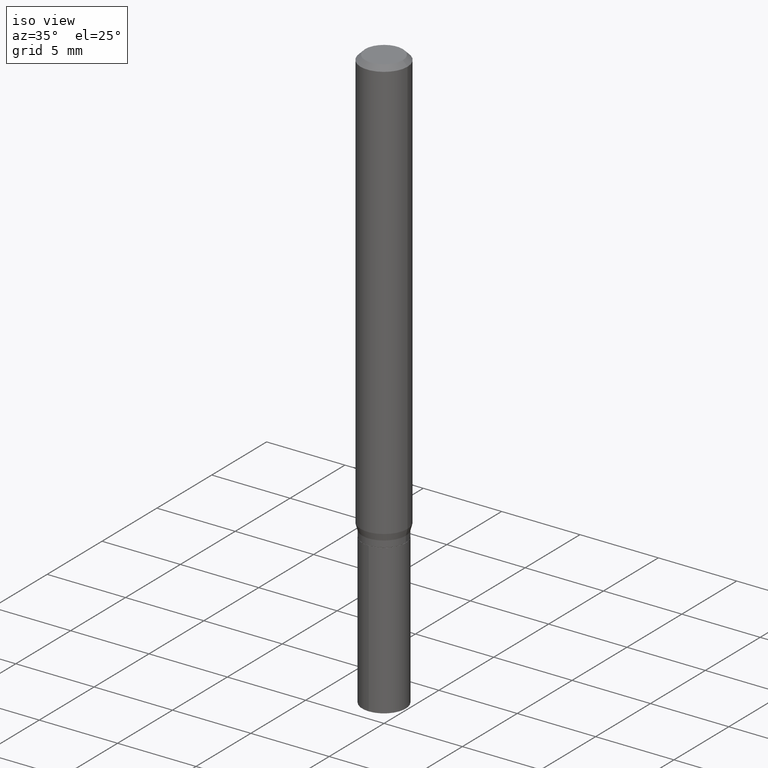
[diagram: clean part render]
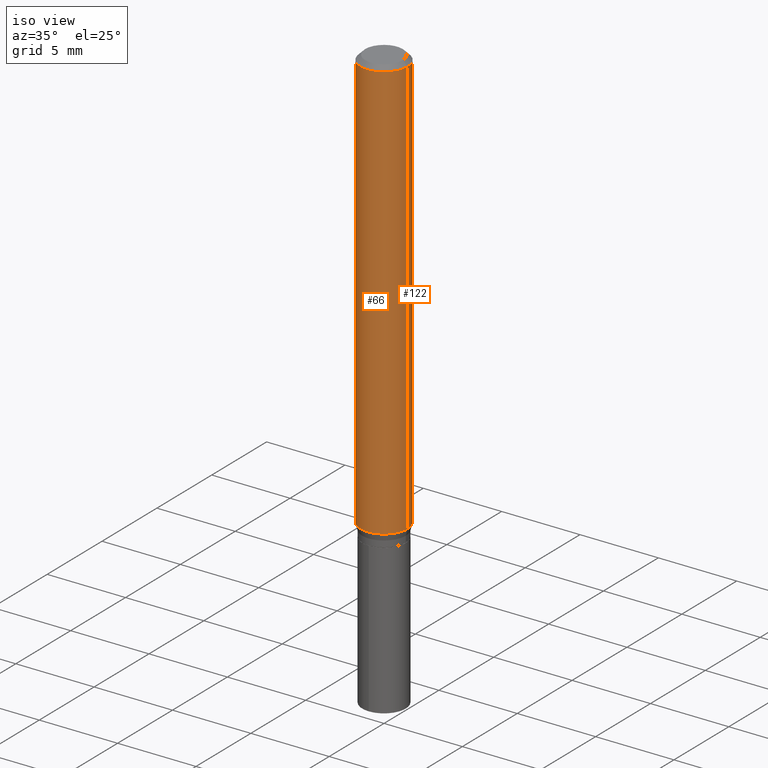
[diagram: same view with one multi-face feature highlighted, each face labeled with its STEP entity id]
A machine part, iso view. The highlighted faces form ONE feature: a constant-radius fillet chain: 2 tangent blend faces with common blend radius 1.4999 mm. The faces share edges in the B-rep.
Their STEP definitions:
[1] entity #66 (Cylinder):
#8 = VERTEX_POINT ( 'NONE', #71 ) ;
#11 = CARTESIAN_POINT ( 'NONE',  ( 0.05905000000000006771, -4.123439461173745257E-16, 2.879382386107503723E-30 ) ) ;
#13 = VERTEX_POINT ( 'NONE', #94 ) ;
#23 = CARTESIAN_POINT ( 'NONE',  ( -0.05904999999999999832, -1.453806359604882366E-15, -0.01181000000000007218 ) ) ;
#24 = DIRECTION ( 'NONE',  ( 1.000000000000000000, -6.982962677686265133E-15, 0.000000000000000000 ) ) ;
#29 = EDGE_CURVE ( 'NONE', #13, #440, #317, .T. ) ;
#53 = VECTOR ( 'NONE', #286, 39.37007874015748143 ) ;
#66 = ADVANCED_FACE ( 'NONE', ( #347 ), #336, .T. ) ;
#71 = CARTESIAN_POINT ( 'NONE',  ( 0.05904999999999999832, -4.535783407291118600E-16, -0.01181000000000007218 ) ) ;
#85 = ORIENTED_EDGE ( 'NONE', *, *, #206, .T. ) ;
#94 = CARTESIAN_POINT ( 'NONE',  ( -0.05905000000000013016, -3.285953810064368075E-15, -1.061305771365939510 ) ) ;
#162 = ORIENTED_EDGE ( 'NONE', *, *, #242, .T. ) ;
#173 = DIRECTION ( 'NONE',  ( 1.000000000000000000, -6.982962677686266711E-15, 0.000000000000000000 ) ) ;
#188 = DIRECTION ( 'NONE',  ( -2.445468806185136597E-29, 3.491481338843145583E-15, 1.000000000000000000 ) ) ;
#206 = EDGE_CURVE ( 'NONE', #13, #346, #230, .T. ) ;
#210 = LINE ( 'NONE', #11, #53 ) ;
#227 = EDGE_CURVE ( 'NONE', #440, #8, #292, .T. ) ;
#230 = CIRCLE ( 'NONE', #417, 0.05905000000000013016 ) ;
#240 = CARTESIAN_POINT ( 'NONE',  ( -0.05905000000000006771, 4.195754854663396409E-16, -2.904631170795525045E-30 ) ) ;
#242 = EDGE_CURVE ( 'NONE', #346, #8, #210, .T. ) ;
#286 = DIRECTION ( 'NONE',  ( -2.445468806185136877E-29, 3.491481338843145188E-15, 1.000000000000000000 ) ) ;
#292 = CIRCLE ( 'NONE', #430, 0.05904999999999999832 ) ;
#299 = CARTESIAN_POINT ( 'NONE',  ( 0.000000000000000000, 0.000000000000000000, 0.000000000000000000 ) ) ;
#315 = DIRECTION ( 'NONE',  ( -2.445468806185136597E-29, 3.491481338843145583E-15, 1.000000000000000000 ) ) ;
#316 = ORIENTED_EDGE ( 'NONE', *, *, #29, .F. ) ;
#317 = LINE ( 'NONE', #240, #398 ) ;
#336 = CYLINDRICAL_SURFACE ( 'NONE', #370, 0.05905000000000006771 ) ;
#339 = DIRECTION ( 'NONE',  ( 1.000000000000000000, -6.982962677686266711E-15, 4.876176775795936353E-29 ) ) ;
#346 = VERTEX_POINT ( 'NONE', #473 ) ;
#347 = FACE_OUTER_BOUND ( 'NONE', #426, .T. ) ;
#370 = AXIS2_PLACEMENT_3D ( 'NONE', #299, #188, #339 ) ;
#390 = ORIENTED_EDGE ( 'NONE', *, *, #227, .F. ) ;
#391 = DIRECTION ( 'NONE',  ( -2.445468806185136877E-29, 3.491481338843145188E-15, 1.000000000000000000 ) ) ;
#393 = CARTESIAN_POINT ( 'NONE',  ( 2.888098660104664204E-31, -4.123439461173780263E-17, -0.01181000000000007218 ) ) ;
#398 = VECTOR ( 'NONE', #391, 39.37007874015748143 ) ;
#417 = AXIS2_PLACEMENT_3D ( 'NONE', #467, #441, #24 ) ;
#426 = EDGE_LOOP ( 'NONE', ( #316, #85, #162, #390 ) ) ;
#430 = AXIS2_PLACEMENT_3D ( 'NONE', #393, #315, #173 ) ;
#440 = VERTEX_POINT ( 'NONE', #23 ) ;
#441 = DIRECTION ( 'NONE',  ( -2.445468806185136597E-29, 3.491481338843145583E-15, 1.000000000000000000 ) ) ;
#467 = CARTESIAN_POINT ( 'NONE',  ( 2.595390157699659796E-29, -3.705529295530707962E-15, -1.061305771365939510 ) ) ;
#473 = CARTESIAN_POINT ( 'NONE',  ( 0.05905000000000013016, -4.117873241648082882E-15, -1.061305771365939510 ) ) ;
[2] entity #122 (Cylinder):
#8 = VERTEX_POINT ( 'NONE', #71 ) ;
#11 = CARTESIAN_POINT ( 'NONE',  ( 0.05905000000000006771, -4.123439461173745257E-16, 2.879382386107503723E-30 ) ) ;
#13 = VERTEX_POINT ( 'NONE', #94 ) ;
#23 = CARTESIAN_POINT ( 'NONE',  ( -0.05904999999999999832, -1.453806359604882366E-15, -0.01181000000000007218 ) ) ;
#29 = EDGE_CURVE ( 'NONE', #13, #440, #317, .T. ) ;
#30 = AXIS2_PLACEMENT_3D ( 'NONE', #379, #118, #38 ) ;
#36 = FACE_OUTER_BOUND ( 'NONE', #260, .T. ) ;
#38 = DIRECTION ( 'NONE',  ( 1.000000000000000000, -6.982962677686266711E-15, 4.876176775795936353E-29 ) ) ;
#44 = AXIS2_PLACEMENT_3D ( 'NONE', #351, #152, #389 ) ;
#53 = VECTOR ( 'NONE', #286, 39.37007874015748143 ) ;
#71 = CARTESIAN_POINT ( 'NONE',  ( 0.05904999999999999832, -4.535783407291118600E-16, -0.01181000000000007218 ) ) ;
#91 = CARTESIAN_POINT ( 'NONE',  ( 2.595390157699659796E-29, -3.705529295530707962E-15, -1.061305771365939510 ) ) ;
#94 = CARTESIAN_POINT ( 'NONE',  ( -0.05905000000000013016, -3.285953810064368075E-15, -1.061305771365939510 ) ) ;
#118 = DIRECTION ( 'NONE',  ( -2.445468806185136597E-29, 3.491481338843145583E-15, 1.000000000000000000 ) ) ;
#122 = ADVANCED_FACE ( 'NONE', ( #36 ), #267, .T. ) ;
#135 = CIRCLE ( 'NONE', #485, 0.05905000000000013016 ) ;
#152 = DIRECTION ( 'NONE',  ( -2.445468806185136597E-29, 3.491481338843145583E-15, 1.000000000000000000 ) ) ;
#170 = DIRECTION ( 'NONE',  ( -2.445468806185136597E-29, 3.491481338843145583E-15, 1.000000000000000000 ) ) ;
#183 = CIRCLE ( 'NONE', #44, 0.05904999999999999832 ) ;
#210 = LINE ( 'NONE', #11, #53 ) ;
#239 = ORIENTED_EDGE ( 'NONE', *, *, #29, .T. ) ;
#240 = CARTESIAN_POINT ( 'NONE',  ( -0.05905000000000006771, 4.195754854663396409E-16, -2.904631170795525045E-30 ) ) ;
#242 = EDGE_CURVE ( 'NONE', #346, #8, #210, .T. ) ;
#246 = DIRECTION ( 'NONE',  ( 1.000000000000000000, -6.982962677686265133E-15, 0.000000000000000000 ) ) ;
#260 = EDGE_LOOP ( 'NONE', ( #328, #239, #331, #289 ) ) ;
#267 = CYLINDRICAL_SURFACE ( 'NONE', #30, 0.05905000000000006771 ) ;
#286 = DIRECTION ( 'NONE',  ( -2.445468806185136877E-29, 3.491481338843145188E-15, 1.000000000000000000 ) ) ;
#289 = ORIENTED_EDGE ( 'NONE', *, *, #242, .F. ) ;
#317 = LINE ( 'NONE', #240, #398 ) ;
#328 = ORIENTED_EDGE ( 'NONE', *, *, #420, .T. ) ;
#330 = EDGE_CURVE ( 'NONE', #8, #440, #183, .T. ) ;
#331 = ORIENTED_EDGE ( 'NONE', *, *, #330, .F. ) ;
#346 = VERTEX_POINT ( 'NONE', #473 ) ;
#351 = CARTESIAN_POINT ( 'NONE',  ( 2.888098660104664204E-31, -4.123439461173780263E-17, -0.01181000000000007218 ) ) ;
#379 = CARTESIAN_POINT ( 'NONE',  ( 0.000000000000000000, 0.000000000000000000, 0.000000000000000000 ) ) ;
#389 = DIRECTION ( 'NONE',  ( 1.000000000000000000, -6.982962677686266711E-15, 0.000000000000000000 ) ) ;
#391 = DIRECTION ( 'NONE',  ( -2.445468806185136877E-29, 3.491481338843145188E-15, 1.000000000000000000 ) ) ;
#398 = VECTOR ( 'NONE', #391, 39.37007874015748143 ) ;
#420 = EDGE_CURVE ( 'NONE', #346, #13, #135, .T. ) ;
#440 = VERTEX_POINT ( 'NONE', #23 ) ;
#473 = CARTESIAN_POINT ( 'NONE',  ( 0.05905000000000013016, -4.117873241648082882E-15, -1.061305771365939510 ) ) ;
#485 = AXIS2_PLACEMENT_3D ( 'NONE', #91, #170, #246 ) ;